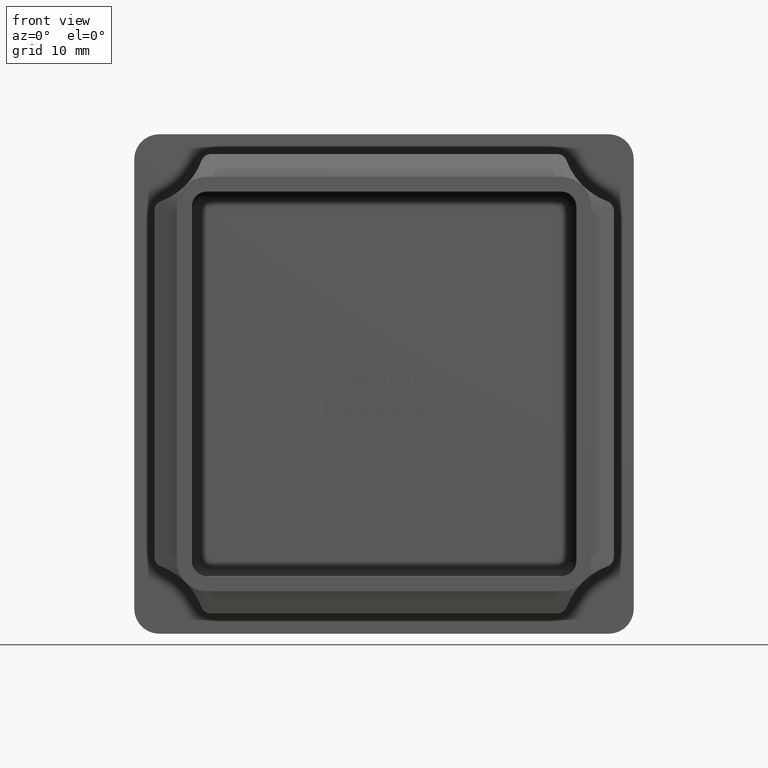
[diagram: clean part render]
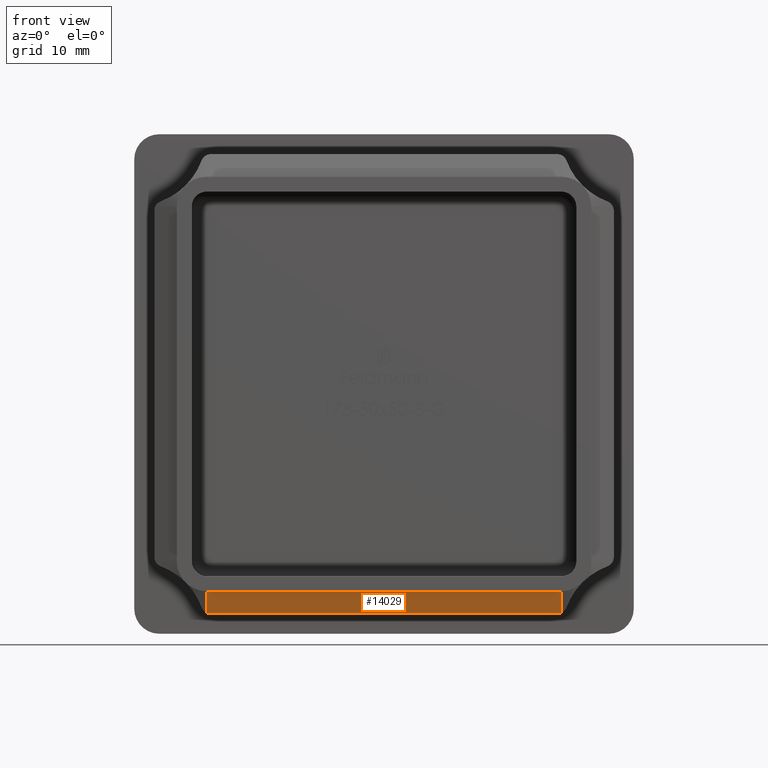
[diagram: same view with one face highlighted and labeled with its STEP entity id]
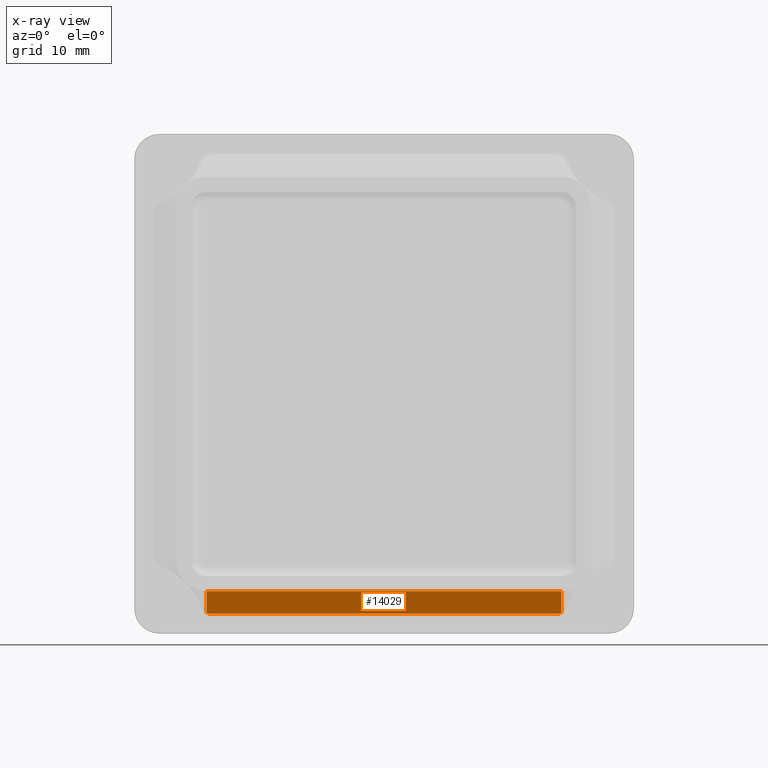
[diagram: x-ray of the same camera — body ghosted, the highlighted face saturated]
A machine part, front view. The second image highlights one B-rep face of the part: STEP entity #14029.
The next image is the same camera in x-ray: the body ghosted, the highlighted face saturated — about 0% of this face is hidden behind the body in this view.
In plain terms, the highlighted planar face has unit normal (0, 0.9261, 0.3772).
Its self-contained STEP definition (entity closure, byte-faithful):
#61 = CARTESIAN_POINT ( 'NONE',  ( 17.75000000000000000, -12.09630670755170279, -22.96885971462470621 ) ) ;
#329 =( BOUNDED_CURVE ( )  B_SPLINE_CURVE ( 3, ( #21008, #16019, #22773, #5291 ),
 .UNSPECIFIED., .F., .F. ) 
 B_SPLINE_CURVE_WITH_KNOTS ( ( 4, 4 ),
 ( 3.391805605384321076, 3.569562260223783756 ),
 .UNSPECIFIED. ) 
 CURVE ( )  GEOMETRIC_REPRESENTATION_ITEM ( )  RATIONAL_B_SPLINE_CURVE ( ( 1.000000000000000000, 0.9973686138443028648, 0.9973686138443028648, 1.000000000000000000 ) ) 
 REPRESENTATION_ITEM ( '' )  );
#570 = ORIENTED_EDGE ( 'NONE', *, *, #8239, .T. ) ;
#1391 = CARTESIAN_POINT ( 'NONE',  ( -17.58258589888708912, -12.09630670755170279, -22.96885971462470621 ) ) ;
#1482 = LINE ( 'NONE', #61, #8112 ) ;
#1762 = CARTESIAN_POINT ( 'NONE',  ( -17.74999999999999289, -12.09630670755170279, -22.96885971462470621 ) ) ;
#3084 = CARTESIAN_POINT ( 'NONE',  ( -17.74999999999999289, -12.12035625477346379, -22.90981028720143087 ) ) ;
#3161 = CARTESIAN_POINT ( 'NONE',  ( -17.64006869561508850, -12.10228995391758211, -22.95416890698579238 ) ) ;
#4348 = DIRECTION ( 'NONE',  ( 0.000000000000000000, -0.3771942924919583495, 0.9261341510340124206 ) ) ;
#4663 = EDGE_CURVE ( 'NONE', #14740, #17115, #22277, .T. ) ;
#4713 = CARTESIAN_POINT ( 'NONE',  ( -17.58258589888708912, -12.09630670755170279, -22.96885971462470621 ) ) ;
#4958 = CARTESIAN_POINT ( 'NONE',  ( -17.69602062712401036, -12.11032761986105477, -22.93443383391330315 ) ) ;
#5291 = CARTESIAN_POINT ( 'NONE',  ( 17.75000000000000000, -12.12035625477346557, -22.90981028720142731 ) ) ;
#5861 =( BOUNDED_CURVE ( )  B_SPLINE_CURVE ( 3, ( #1391, #3161, #4958, #8191 ),
 .UNSPECIFIED., .F., .T. ) 
 B_SPLINE_CURVE_WITH_KNOTS ( ( 4, 4 ),
 ( 3.391805605384324629, 3.569562260223776651 ),
 .UNSPECIFIED. ) 
 CURVE ( )  GEOMETRIC_REPRESENTATION_ITEM ( )  RATIONAL_B_SPLINE_CURVE ( ( 1.000000000000000000, 0.9973686138443031979, 0.9973686138443031979, 1.000000000000000000 ) ) 
 REPRESENTATION_ITEM ( '' )  );
#6057 = PLANE ( 'NONE',  #14770 ) ;
#6528 = CARTESIAN_POINT ( 'NONE',  ( 17.75000000000000000, -12.09630670755170279, -22.96885971462470621 ) ) ;
#7648 = LINE ( 'NONE', #19794, #11798 ) ;
#7717 = DIRECTION ( 'NONE',  ( -1.000000000000000000, 0.000000000000000000, 0.000000000000000000 ) ) ;
#7895 = EDGE_CURVE ( 'NONE', #9935, #9981, #1482, .T. ) ;
#8072 = CARTESIAN_POINT ( 'NONE',  ( -17.74999999999999289, -13.00000000000000178, -20.75000000000010303 ) ) ;
#8112 = VECTOR ( 'NONE', #12421, 1000.000000000000114 ) ;
#8191 = CARTESIAN_POINT ( 'NONE',  ( -17.74999999999999289, -12.12035625477346379, -22.90981028720143087 ) ) ;
#8239 = EDGE_CURVE ( 'NONE', #17397, #9981, #329, .T. ) ;
#9935 = VERTEX_POINT ( 'NONE', #19222 ) ;
#9981 = VERTEX_POINT ( 'NONE', #14544 ) ;
#10096 = VECTOR ( 'NONE', #21333, 1000.000000000000114 ) ;
#10174 = ORIENTED_EDGE ( 'NONE', *, *, #21555, .F. ) ;
#11468 = DIRECTION ( 'NONE',  ( 0.000000000000000000, 0.9261341510340124206, 0.3771942924919583495 ) ) ;
#11798 = VECTOR ( 'NONE', #7717, 1000.000000000000000 ) ;
#12421 = DIRECTION ( 'NONE',  ( 0.000000000000000000, 0.3771942924919582940, -0.9261341510340124206 ) ) ;
#12940 = ORIENTED_EDGE ( 'NONE', *, *, #15331, .T. ) ;
#13167 = EDGE_LOOP ( 'NONE', ( #10174, #13330, #570, #18048, #12940, #19224 ) ) ;
#13169 = CARTESIAN_POINT ( 'NONE',  ( 17.75000000000000000, -12.09630670755170279, -22.96885971462470621 ) ) ;
#13330 = ORIENTED_EDGE ( 'NONE', *, *, #20962, .F. ) ;
#13870 = LINE ( 'NONE', #6528, #16933 ) ;
#14029 = ADVANCED_FACE ( 'NONE', ( #17381 ), #6057, .F. ) ;
#14544 = CARTESIAN_POINT ( 'NONE',  ( 17.75000000000000000, -12.12035625477346557, -22.90981028720142731 ) ) ;
#14740 = VERTEX_POINT ( 'NONE', #8072 ) ;
#14770 = AXIS2_PLACEMENT_3D ( 'NONE', #13169, #11468, #4348 ) ;
#15331 = EDGE_CURVE ( 'NONE', #9935, #14740, #7648, .T. ) ;
#16019 = CARTESIAN_POINT ( 'NONE',  ( 17.64006869561508850, -12.10228995391758389, -22.95416890698579593 ) ) ;
#16933 = VECTOR ( 'NONE', #22458, 1000.000000000000000 ) ;
#17115 = VERTEX_POINT ( 'NONE', #3084 ) ;
#17381 = FACE_OUTER_BOUND ( 'NONE', #13167, .T. ) ;
#17397 = VERTEX_POINT ( 'NONE', #22333 ) ;
#18048 = ORIENTED_EDGE ( 'NONE', *, *, #7895, .F. ) ;
#18880 = VERTEX_POINT ( 'NONE', #4713 ) ;
#19222 = CARTESIAN_POINT ( 'NONE',  ( 17.75000000000000000, -13.00000000000004086, -20.75000000000000355 ) ) ;
#19224 = ORIENTED_EDGE ( 'NONE', *, *, #4663, .T. ) ;
#19794 = CARTESIAN_POINT ( 'NONE',  ( 17.75000000000000000, -13.00000000000000178, -20.75000000000010303 ) ) ;
#20962 = EDGE_CURVE ( 'NONE', #17397, #18880, #13870, .T. ) ;
#21008 = CARTESIAN_POINT ( 'NONE',  ( 17.58258589888708556, -12.09630670755170279, -22.96885971462470621 ) ) ;
#21333 = DIRECTION ( 'NONE',  ( 0.000000000000000000, 0.3771942924919582940, -0.9261341510340124206 ) ) ;
#21555 = EDGE_CURVE ( 'NONE', #18880, #17115, #5861, .T. ) ;
#22277 = LINE ( 'NONE', #1762, #10096 ) ;
#22333 = CARTESIAN_POINT ( 'NONE',  ( 17.58258589888708556, -12.09630670755170279, -22.96885971462470621 ) ) ;
#22458 = DIRECTION ( 'NONE',  ( -1.000000000000000000, 0.000000000000000000, 0.000000000000000000 ) ) ;
#22773 = CARTESIAN_POINT ( 'NONE',  ( 17.69602062712401747, -12.11032761986105655, -22.93443383391330670 ) ) ;